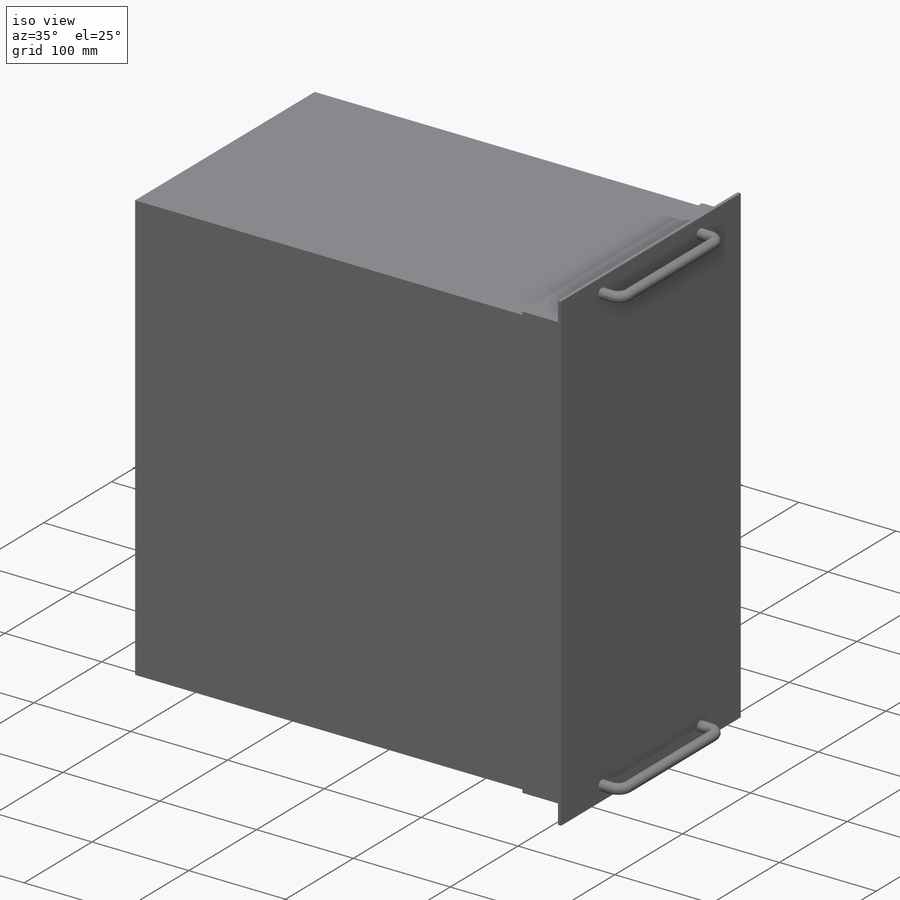
[diagram: iso view]
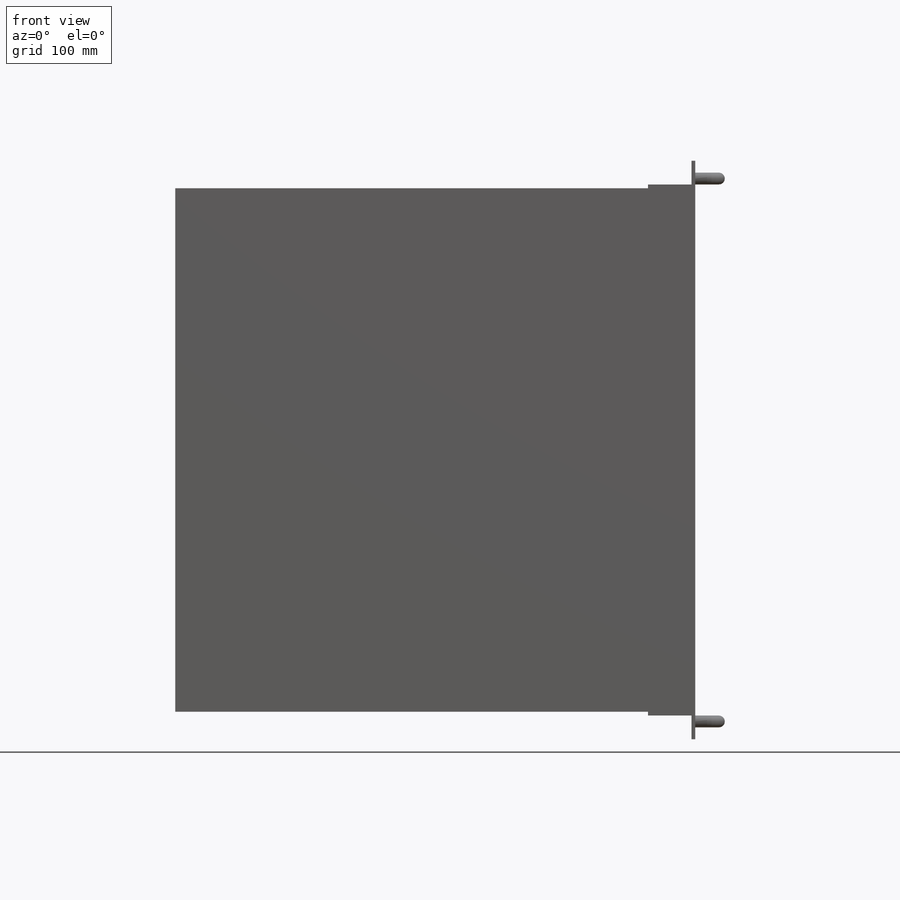
[diagram: front view]
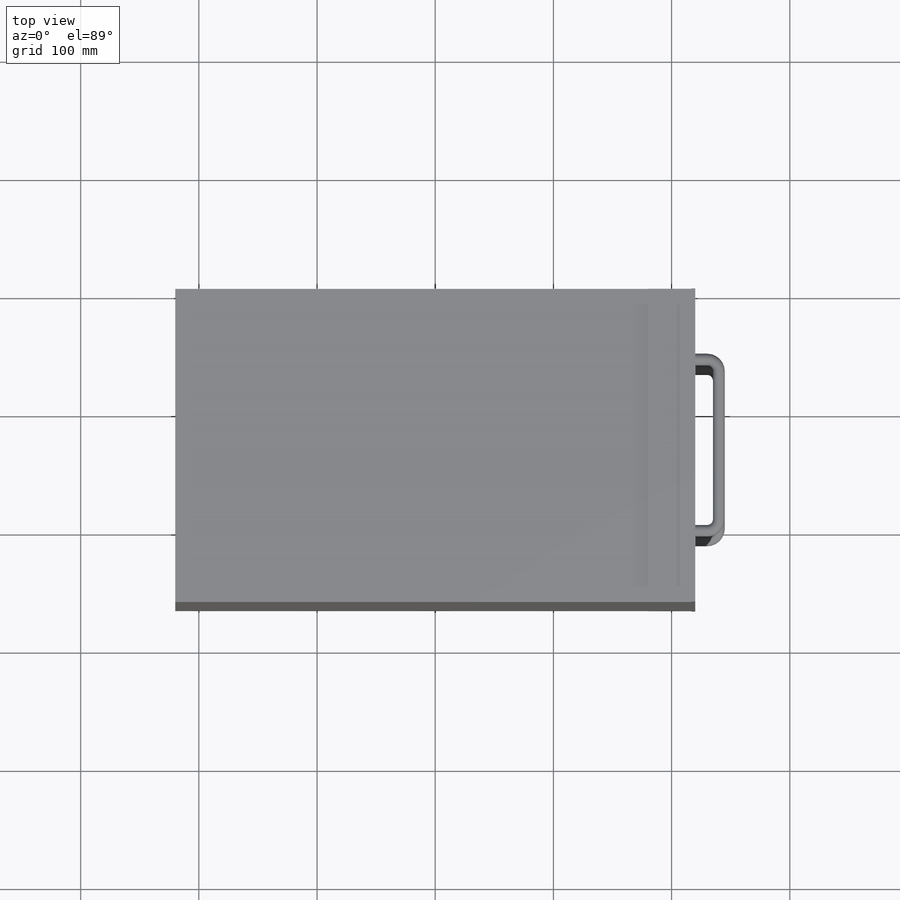
[diagram: top view]
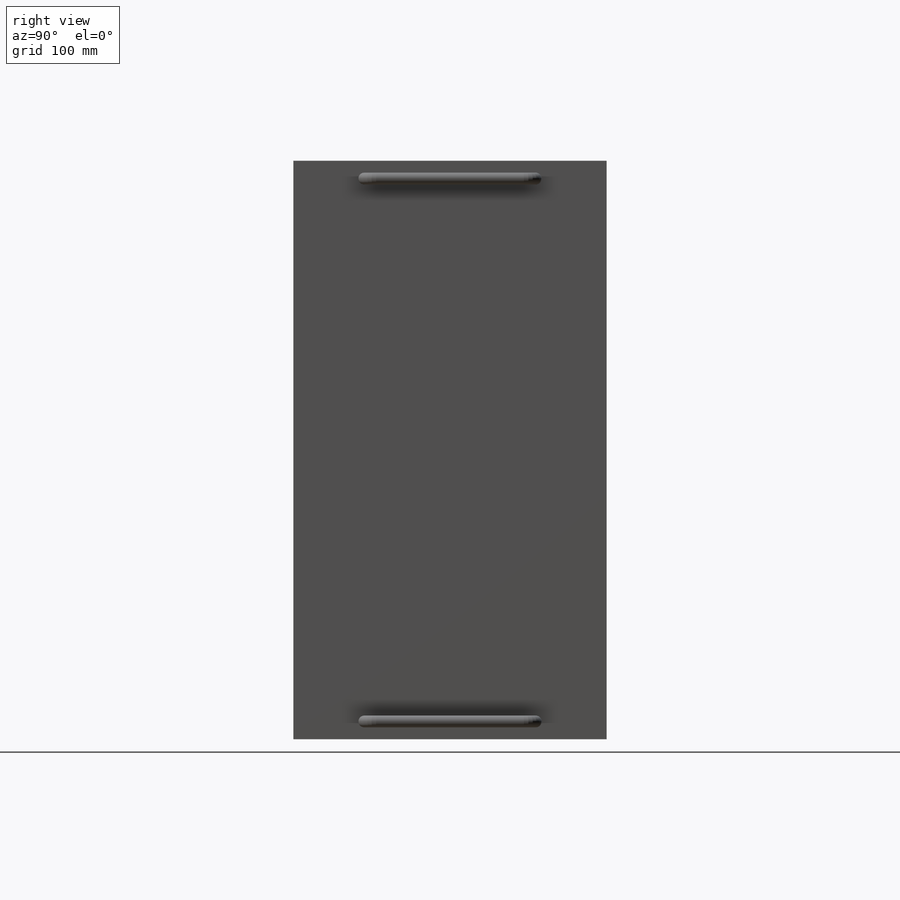
[diagram: right view]
SOLIDWORKS PART (.sldprt)
format: sldprt  version: not decoded by parser v0  size: 173,056 bytes
history: native  units: mm
features: sketch x5, extrude x3, material x1, sweep x1, mirror x1 (+12 scaffold rows collapsed)
feature tree (23):
  scaffold x12  (default folders/planes/origin — collapsed)
  material  "Material <not specified>"
  sketch  "Sketch1"  dims[D1=443.0mm D2=440.0mm]
  extrude  "Boss-Extrude1"  Depth=265mm
  sketch  "Sketch3"  dims[D1=40.0mm]
  extrude  "Boss-Extrude2"  Depth=3.175mm
  sketch  "Sketch4"  dims[D1=3.175mm]
  extrude  "Boss-Extrude3"  Depth=20mm
  sketch  "3DSketch1"  dims[D5=10.0mm D1=15.0mm D2=60.0mm D3=20.0mm D4=60.0mm]
  sketch  "Sketch5"  dims[D1=10.0mm]
  sweep  "Sweep1"
  mirror  "Mirror2"
decode coverage: 8 of 10 modeling features carry decoded parameters
note: suppression state not decoded; provenance and decode notes live in map.json
